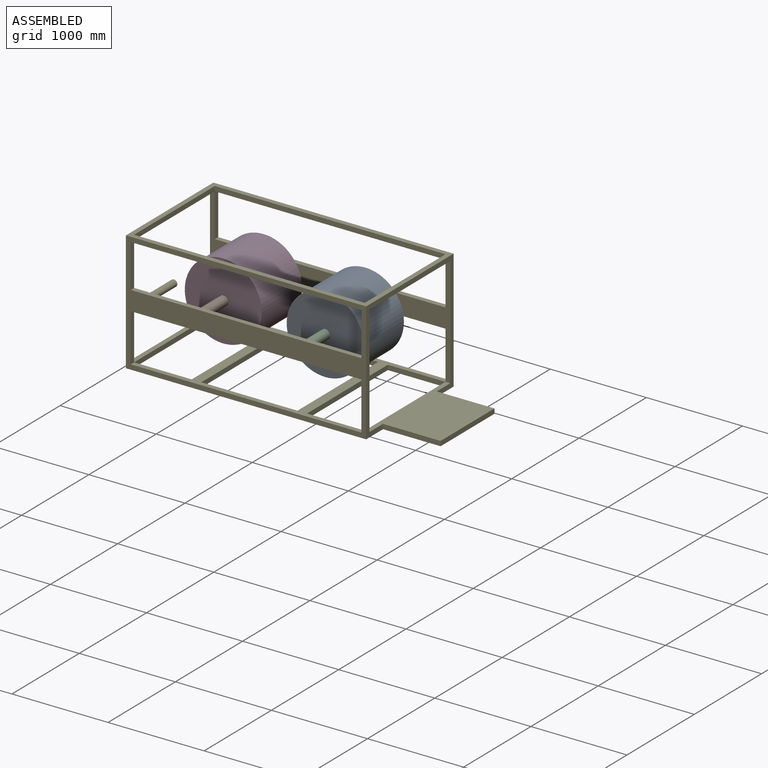
[diagram: assembled view]
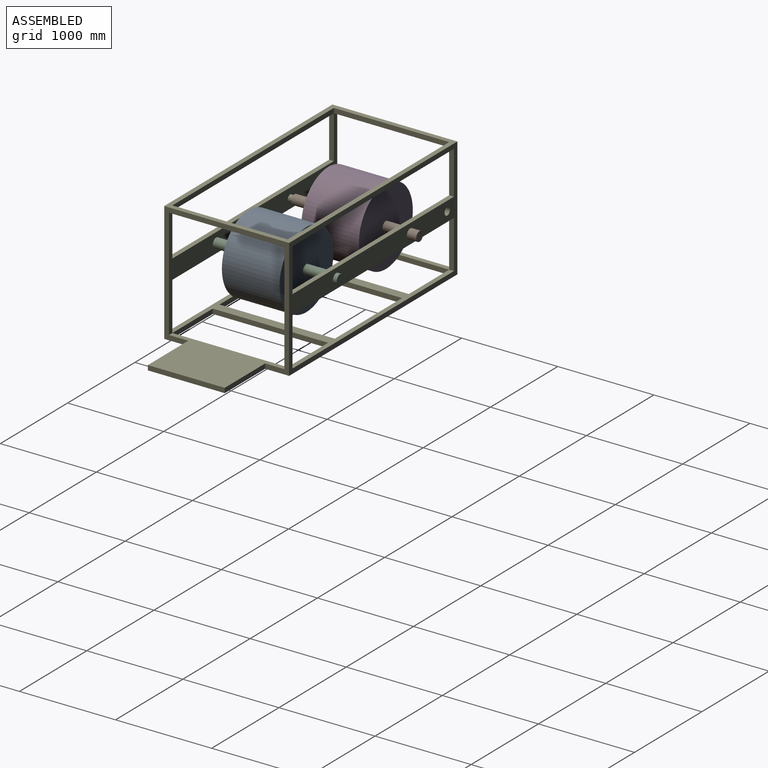
[diagram: assembled view, second angle]
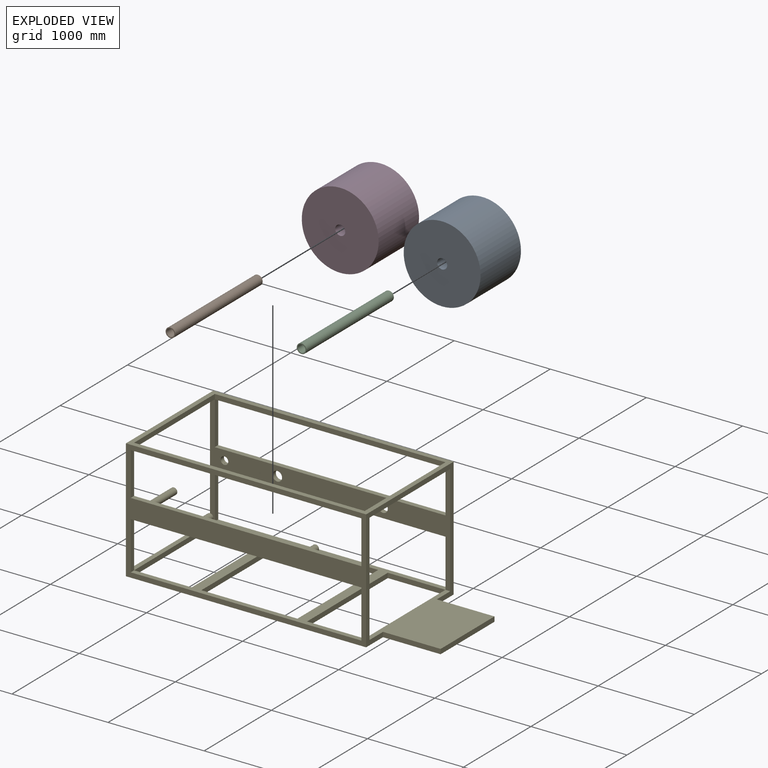
[diagram: exploded view]
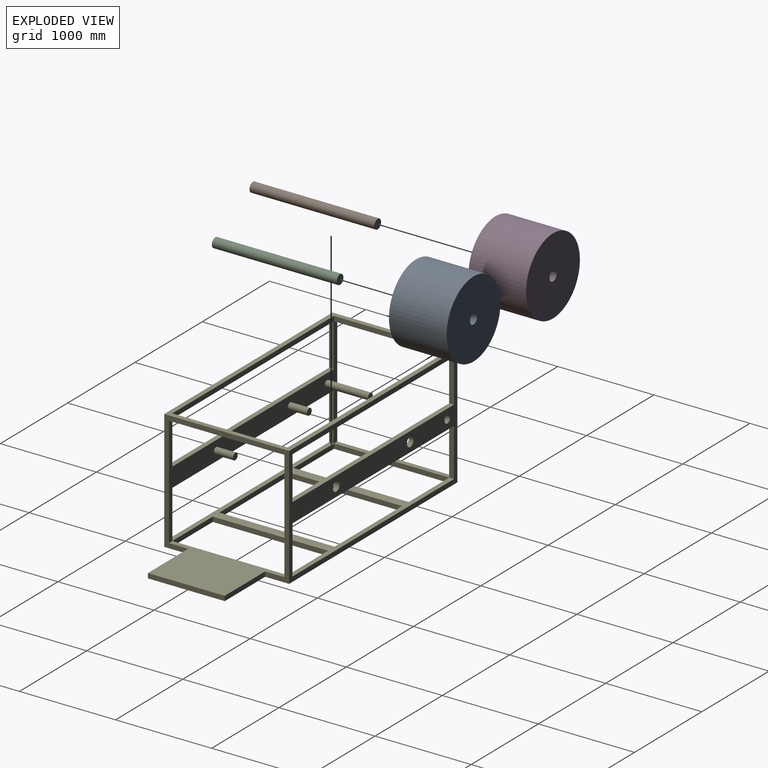
[diagram: exploded view, second angle]
ASSEMBLY  parts=5 mates=4
PART A: 4 faces, bbox 800x600x800 mm
  f0: cylinder r=52.5mm len=600mm, axis (0,1,0), area 197920.3mm2, adj f2,f3
  f1: cylinder r=400mm len=800mm, axis (0,1,0), area 1507964.5mm2, adj f2,f3
  f2: plane 800x800mm, normal (0,-1,0), area 493995.8mm2, adj f0,f1
  f3: plane 800x800mm, normal (0,1,0), area 493995.8mm2, adj f0,f1
PART B: 5 faces, bbox 100x1300x100 mm
  f0: cylinder r=50mm len=1300mm, axis (0,1,0), area 408407mm2, adj f1,f2
  f1: plane 100x100mm, normal (0,-1,0), area 7854mm2, adj f0
  f2: plane 100x100mm, normal (0,1,0), area 2827.4mm2, adj f0,f3
  f3: cylinder r=40mm len=300mm, axis (0,1,0), area 75398.2mm2, adj f2,f4
  f4: plane 80x80mm, normal (0,1,0), area 5026.5mm2, adj f3
PART C: same geometry as B
PART D: same geometry as A
PART E: 55 faces, bbox 3100x1300x1250 mm
  f0: plane 500x50mm, normal (1,0,0), area 25000mm2, adj f6,f9,f29,f45
  f1: plane 450x50mm, normal (-1,0,0), area 22500mm2, adj f9,f29,f37,f44
  f2: plane 500x50mm, normal (1,0,0), area 25000mm2, adj f6,f11,f33,f43
  f3: plane 450x50mm, normal (-1,0,0), area 22500mm2, adj f11,f33,f36,f42
  f4: plane 2400x50mm, normal (0,-1,0), area 120000mm2, adj f31,f37,f39,f40
  f5: plane 2400x50mm, normal (0,1,0), area 120000mm2, adj f31,f36,f39,f40
  f6: plane 2400x1300mm, normal (0,0,1), area 480000mm2, adj f0,f2,f9,f11,f16,f17,f18,f19
  f7: plane 1200x650mm, normal (0,0,1), area 540000mm2, adj f12,f13,f14,f23,f27,f29,f33
  f8: plane 1200x50mm, normal (0,0,1), area 60000mm2, adj f10,f15,f29,f33
  f9: plane 2500x1250mm, normal (0,1,0), area 824265.5mm2, adj f0,f1,f6,f10,f27,f28,f30,f31
  f10: plane 1300x1250mm, normal (-1,0,0), area 245000mm2, adj f8,f9,f11,f28,f29,f31,f33,f38
  f11: plane 2500x1250mm, normal (0,-1,0), area 845000mm2, adj f2,f3,f6,f10,f27,f28,f31,f32
  f12: plane 600x50mm, normal (0,-1,0), area 30000mm2, adj f7,f13,f27,f28
  f13: plane 800x50mm, normal (1,0,0), area 40000mm2, adj f7,f12,f14,f28
  f14: plane 600x50mm, normal (0,1,0), area 30000mm2, adj f7,f13,f27,f28
  f15: plane 1200x50mm, normal (1,0,0), area 60000mm2, adj f8,f16,f24,f28
  f16: plane 600x50mm, normal (0,-1,0), area 30000mm2, adj f6,f15,f17,f28
  f17: plane 1200x50mm, normal (-1,0,0), area 60000mm2, adj f6,f16,f24,f28
  f18: plane 1200x50mm, normal (1,0,0), area 60000mm2, adj f6,f19,f25,f28
  f19: plane 1000x50mm, normal (0,-1,0), area 50000mm2, adj f6,f18,f20,f28
  f20: plane 1200x50mm, normal (-1,0,0), area 60000mm2, adj f6,f19,f25,f28
  f21: plane 1200x50mm, normal (1,0,0), area 60000mm2, adj f6,f22,f26,f28
  f22: plane 600x50mm, normal (0,-1,0), area 30000mm2, adj f6,f21,f23,f28
  f23: plane 1200x50mm, normal (-1,0,0), area 60000mm2, adj f7,f22,f26,f28
  f24: plane 600x50mm, normal (0,1,0), area 30000mm2, adj f6,f15,f17,f28
  f25: plane 1000x50mm, normal (0,1,0), area 50000mm2, adj f6,f18,f20,f28
  f26: plane 600x50mm, normal (0,1,0), area 30000mm2, adj f6,f21,f23,f28
  f27: plane 1300x1250mm, normal (1,0,0), area 205000mm2, adj f7,f9,f11,f12,f14,f28,f29,f31
  f28: plane 3100x1300mm, normal (0,0,-1), area 1090000mm2, adj f9,f10,f11,f12,f13,f14,f15,f16
  f29: plane 2500x1150mm, normal (0,-1,0), area 574265.5mm2, adj f0,f1,f7,f8,f10,f27,f30,f34
  f30: plane 450x50mm, normal (1,0,0), area 22500mm2, adj f9,f29,f37,f44
  f31: plane 2500x1300mm, normal (0,0,1), area 370000mm2, adj f4,f5,f9,f10,f11,f27,f39,f40
  f32: plane 450x50mm, normal (1,0,0), area 22500mm2, adj f11,f33,f36,f42
  f33: plane 2500x1150mm, normal (0,1,0), area 583454.6mm2, adj f2,f3,f7,f8,f10,f27,f32,f35
  f34: plane 500x50mm, normal (-1,0,0), area 25000mm2, adj f6,f9,f29,f45
  f35: plane 500x50mm, normal (-1,0,0), area 25000mm2, adj f6,f11,f33,f43
  f36: plane 2400x50mm, normal (0,0,-1), area 120000mm2, adj f3,f5,f11,f32
  f37: plane 2400x50mm, normal (0,0,-1), area 120000mm2, adj f1,f4,f9,f30
  f38: plane 1200x50mm, normal (0,0,-1), area 60000mm2, adj f10,f29,f33,f39
  f39: plane 1200x50mm, normal (1,0,0), area 60000mm2, adj f4,f5,f31,f38
  f40: plane 1200x50mm, normal (-1,0,0), area 60000mm2, adj f4,f5,f31,f41
  f41: plane 1200x50mm, normal (0,0,-1), area 60000mm2, adj f27,f29,f33,f40
  f42: plane 2400x50mm, normal (0,0,1), area 120000mm2, adj f3,f11,f32,f33
  f43: plane 2400x50mm, normal (0,0,-1), area 120000mm2, adj f2,f11,f33,f35
  f44: plane 2400x50mm, normal (0,0,1), area 120000mm2, adj f1,f9,f29,f30
  f45: plane 2400x50mm, normal (0,0,-1), area 120000mm2, adj f0,f9,f29,f34
  f46: cylinder r=50mm len=100mm, axis (0,-1,0), area 15708mm2, adj f9,f29
  f47: cylinder r=35mm len=200mm, axis (0,-1,0), area 43982.3mm2, adj f33,f48
  f48: plane 70x70mm, normal (0,1,0), area 3848.5mm2, adj f47
  f49: cylinder r=50mm len=100mm, axis (0,-1,0), area 15708mm2, adj f9,f29
  f50: cylinder r=35mm len=200mm, axis (0,-1,0), area 43982.3mm2, adj f33,f51
  f51: plane 70x70mm, normal (0,1,0), area 3848.5mm2, adj f50
  f52: cylinder r=35mm len=450mm, axis (0,-1,0), area 98960.2mm2, adj f33,f53
  f53: plane 70x70mm, normal (0,1,0), area 3848.5mm2, adj f52
  f54: cylinder r=40mm len=80mm, axis (0,-1,0), area 12566.4mm2, adj f9,f29
PLACE A rot(axis=(0,0,1),0deg) t=(-699.05,-903.14,-567.81)mm
PLACE B rot(axis=(0.94,0,-0.35),180deg) t=(-1799.05,-846.69,-567.81)mm
PLACE C rot(axis=(0,0,1),180deg) t=(-699.05,-903.14,-567.81)mm
PLACE D rot(axis=(0,-1,0),49.2deg) t=(-1799.05,-846.69,-567.81)mm
PLACE E t=(-1249.05,-943.14,-1192.81)mm fixed
MATE cylindrical E.f46 <-> B.f0  axis (0,-1,0) through (-1799.05,-318.14,-567.81)mm
MATE cylindrical E.f49 <-> C.f0  axis (0,-1,0) through (-699.05,-318.14,-567.81)mm
MATE fastened C.f0 <-> A.f1  axis (0,-1,0) through (-699.05,-903.14,-567.81)mm
MATE fastened D.f1 <-> B.f0  axis (0,1,0) through (-1799.05,-846.69,-567.81)mm
